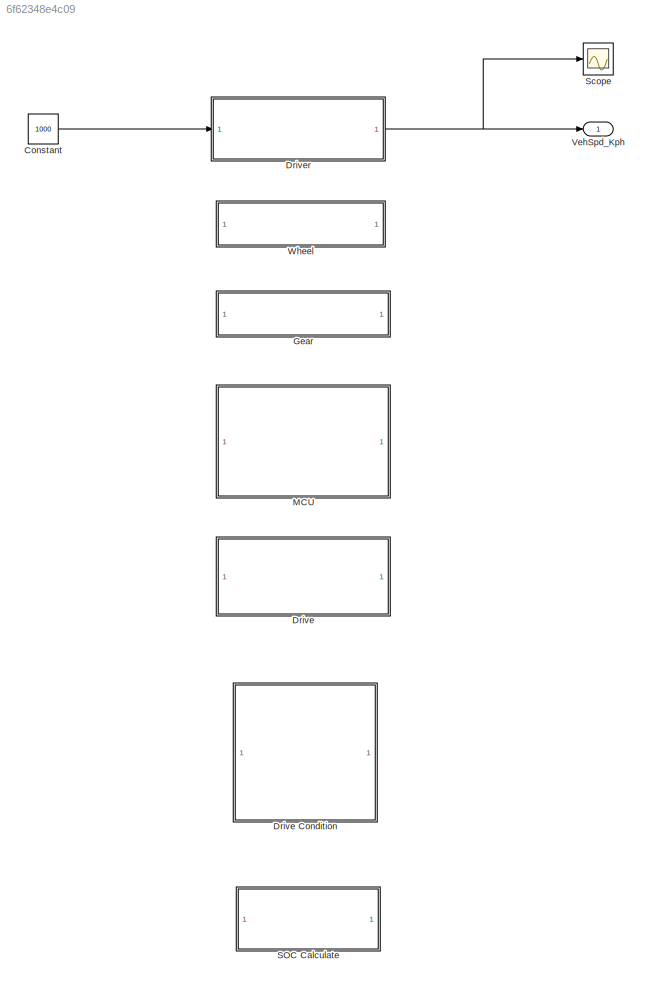
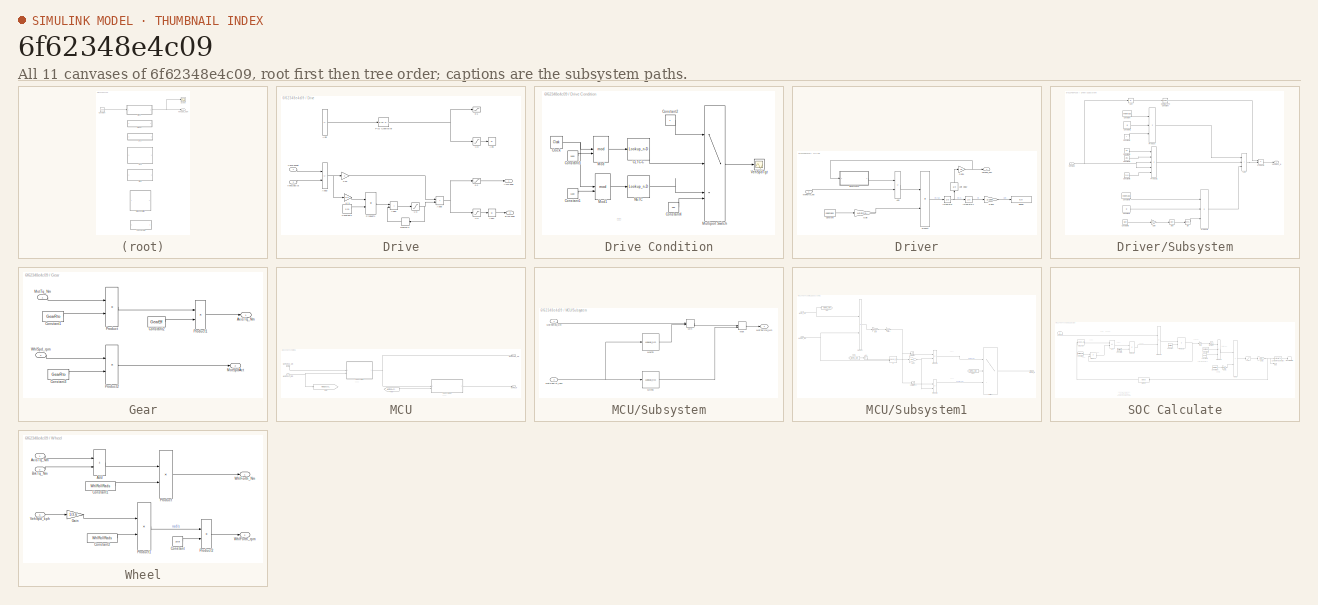
[diagram: thumbnail index - all 11 canvases of the model, root first then tree order]
MODEL slx_6f62348e4c09
KIND model
CONFIG AbsTol = auto
CONFIG EnableMultiTasking = off
CONFIG FixedStep = 0.01
CONFIG MaxStep = auto
CONFIG MinStep = auto
CONFIG RelTol = 1e-3
CONFIG SampleTimeConstraint = Unconstrained
CONFIG SolverName = FixedStepAuto
CONFIG StartTime = 0.0
CONFIG StopTime = 100
WORKSPACE source: mxarray member
WORKSPACE CLTC = [0 1 2 3 4 5 6 7 8 9 10 11 ... (3602 elements, 1801x2)]
WORKSPACE NETC = [0 1 2 3 4 5 6 7 8 9 10 11 ... (2362 elements, 1181x2)]
BLOCK [Constant] Constant
  Value = 1000
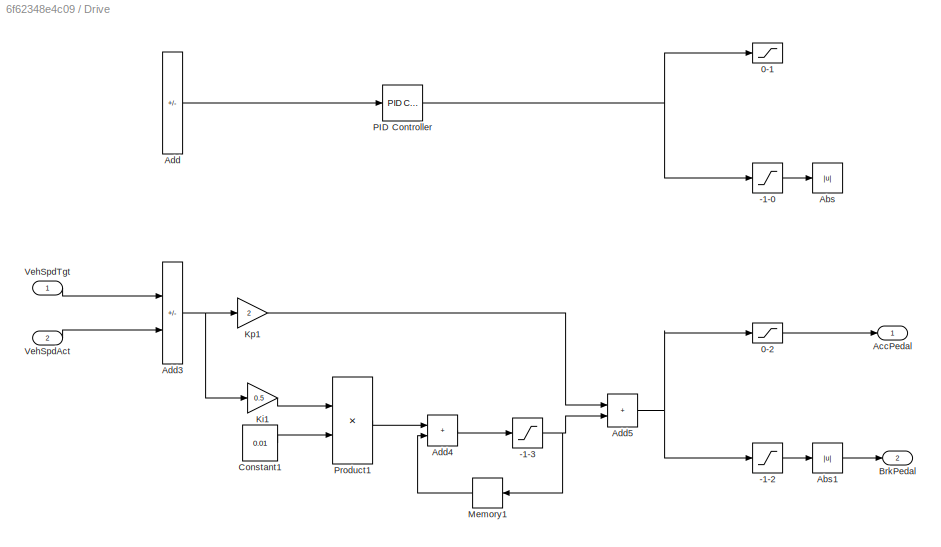
BLOCK [SubSystem] Drive
BLOCK [SubSystem] Drive Condition
BLOCK [Lookup_n-D] Drive Condition/CLTC-C
  BreakpointsForDimension1 = CLTC(:,1)
  InputPortMap = u0
  InternalRulePriority = Speed
  NumberOfTableDimensions = 1
  RndMeth = Simplest
  Table = CLTC(:,2)
BLOCK [Clock] Drive Condition/Clock
  DisplayTime = on
BLOCK [Constant] Drive Condition/Constant1
  Value = 1180
BLOCK [Constant] Drive Condition/Constant2
BLOCK [Constant] Drive Condition/Constant3
  Value = 1800
BLOCK [Constant] Drive Condition/Constant4
  Value = 255
BLOCK [Math] Drive Condition/Mod
  Operator = mod
BLOCK [Math] Drive Condition/Mod1
  Operator = mod
BLOCK [MultiPortSwitch] Drive Condition/Multiport Switch
  InputSameDT = off
  SaturateOnIntegerOverflow = off
BLOCK [Lookup_n-D] Drive Condition/NETC
  BreakpointsForDimension1 = NETC(:,1)
  InputPortMap = u0
  InternalRulePriority = Speed
  NumberOfTableDimensions = 1
  RndMeth = Simplest
  Table = NETC(:,2)
BLOCK [Scope] Drive Condition/VehSpdTgt
  Floating = off
  NumInputPorts = 1
  ScopeSpecificationString = Simulink.scopes.TimeScopeBlockCfg('CurrentConfiguration', extmgr.ConfigurationSet(extmgr.Configuration('Core','General UI',true),extmgr.Configuration('Core','Source UI',true),extmgr.Configuration('Sources','WiredSimulink',true,'DataLoggingVariableName','ScopeData1'),extmgr.Configuration('Visuals','Time Domain',true,'SerializedDisplays',{struct('MinYLimReal','-15.00000','MaxYLimReal','135.00000','Y...<+1453ch>
BLOCK [Saturate] Drive/-1-0
  Commented = on
  LowerLimit = -1
  UpperLimit = 0
BLOCK [Saturate] Drive/-1-2
  LowerLimit = -1
  UpperLimit = 0
BLOCK [Saturate] Drive/-1-3
  LowerLimit = -1
  UpperLimit = 1
BLOCK [Saturate] Drive/0-1
  Commented = on
  LowerLimit = 0
  UpperLimit = 1
BLOCK [Saturate] Drive/0-2
  LowerLimit = 0
  UpperLimit = 1
BLOCK [Abs] Drive/Abs
  Commented = on
  SaturateOnIntegerOverflow = off
BLOCK [Abs] Drive/Abs1
  SaturateOnIntegerOverflow = off
BLOCK [Outport] Drive/AccPedal
BLOCK [Sum] Drive/Add
  Commented = on
  IconShape = rectangular
  Inputs = +-
BLOCK [Sum] Drive/Add3
  IconShape = rectangular
  Inputs = +-
BLOCK [Sum] Drive/Add4
  IconShape = rectangular
BLOCK [Sum] Drive/Add5
  IconShape = rectangular
BLOCK [Outport] Drive/BrkPedal
  Port = 2
BLOCK [Constant] Drive/Constant1
  Value = 0.01
BLOCK [Gain] Drive/Ki1
  Gain = 0.5
BLOCK [Gain] Drive/Kp1
  Gain = 2
BLOCK [Memory] Drive/Memory1
  NameLocation = top
BLOCK [Reference] Drive/PID Controller  REF=slpidlib/PID Controller
  Commented = on
  LibrarySourceBlock = simulink/Continuous/PID Controller
  SourceBlock = slpidlib/PID Controller
  SourceType = PID 1dof
BLOCK [Product] Drive/Product1
BLOCK [Inport] Drive/VehSpdAct
  Port = 2
BLOCK [Inport] Drive/VehSpdTgt
BLOCK [SubSystem] Driver
BLOCK [Sum] Driver/Add
  IconShape = rectangular
  Inputs = -+
BLOCK [Constant] Driver/Constant
  Value = vhemass
BLOCK [Display] Driver/Display
  Decimation = 1
BLOCK [Gain] Driver/Gain
  Gain = 1+RotCoeff
BLOCK [Gain] Driver/Gain1
  Gain = 3.6
BLOCK [Gain] Driver/Gain2
  Gain = 1/1000
BLOCK [Integrator] Driver/Integrator
BLOCK [Integrator] Driver/Integrator1
BLOCK [Product] Driver/Product
  Inputs = */
BLOCK [SubSystem] Driver/Subsystem
BLOCK [Abs] Driver/Subsystem/Abs
  SaturateOnIntegerOverflow = off
BLOCK [Sum] Driver/Subsystem/Add
  IconShape = rectangular
  Inputs = +++
BLOCK [Trigonometry] Driver/Subsystem/Atan
  Operator = atan
BLOCK [Reference] Driver/Subsystem/Compare To Constant  REF=simulink/Logic and Bit
Operations/Compare
To Constant
  SourceBlock = simulink/Logic and Bit\nOperations/Compare\nTo Constant
  SourceType = Compare To Constant
BLOCK [Constant] Driver/Subsystem/Constant
  Value = vhemass
BLOCK [Constant] Driver/Subsystem/Constant1
  Value = g
BLOCK [Constant] Driver/Subsystem/Constant2
  Value = f
BLOCK [Constant] Driver/Subsystem/Constant3
  Value = Cd
BLOCK [Constant] Driver/Subsystem/Constant4
  Value = Area
BLOCK [Constant] Driver/Subsystem/Constant5
  Value = 21.15
BLOCK [Constant] Driver/Subsystem/Constant6
  Value = vhemass
BLOCK [Constant] Driver/Subsystem/Constant7
  Value = g
BLOCK [Constant] Driver/Subsystem/Constant8
  Value = Grad
BLOCK [Gain] Driver/Subsystem/Gain
  Gain = 0.01
BLOCK [Product] Driver/Subsystem/Product
  Inputs = 3
BLOCK [Product] Driver/Subsystem/Product1
  Inputs = ****/
BLOCK [Product] Driver/Subsystem/Product2
  Inputs = 3
BLOCK [Product] Driver/Subsystem/Product3
BLOCK [Trigonometry] Driver/Subsystem/Sin
BLOCK [Outport] Driver/Subsystem/VehRess_N
BLOCK [Inport] Driver/Subsystem/VehSpd
BLOCK [UnitDelay] Driver/Unit Delay
  HasFrameUpgradeWarning = on
  NameLocation = right
  SampleTime = -1
BLOCK [Outport] Driver/VehSpd_Kph
BLOCK [Inport] Driver/WhlForth_Nm
BLOCK [SubSystem] Gear
BLOCK [Outport] Gear/AxisTq_Nm
BLOCK [Constant] Gear/Constant1
  Value = GearRto
BLOCK [Constant] Gear/Constant2
  Value = GearEff
BLOCK [Constant] Gear/Constant3
  Value = GearRto
BLOCK [Outport] Gear/MotSpdAct
  Port = 2
BLOCK [Inport] Gear/MotTq_Nm
BLOCK [Product] Gear/Product
BLOCK [Product] Gear/Product1
BLOCK [Product] Gear/Product2
BLOCK [Inport] Gear/WhlSpd_rpm
  Port = 2
BLOCK [SubSystem] MCU
BLOCK [From] MCU/From
  GotoTag = MotSpdAct_rpm
BLOCK [Goto] MCU/Goto
  GotoTag = MotSpdAct_rpm
BLOCK [Outport] MCU/MotPwr_w
  Port = 2
BLOCK [Inport] MCU/MotSpdAct_rpm
  Port = 2
BLOCK [Outport] MCU/MotTqCmd_Nm
BLOCK [Inport] MCU/MotTqReq_Nm
BLOCK [SubSystem] MCU/Subsystem
BLOCK [MinMax] MCU/Subsystem/Max
  Function = max
  Inputs = 2
BLOCK [Lookup_n-D] MCU/Subsystem/MaxTq
  BreakpointsForDimension1 = MotDrvCrv_1X_rpm
  ExtrapMethod = Clip
  InputPortMap = u0
  InternalRulePriority = Speed
  NumberOfTableDimensions = 1
  RndMeth = Simplest
  Table = MotDrvCrv_1Y_Tq
  UseLastTableValue = on
BLOCK [MinMax] MCU/Subsystem/Min
  Inputs = 2
BLOCK [Lookup_n-D] MCU/Subsystem/MinTq
  BreakpointsForDimension1 = MotGenCrv_1X_rpm
  ExtrapMethod = Clip
  InputPortMap = u0
  InternalRulePriority = Speed
  NumberOfTableDimensions = 1
  RndMeth = Simplest
  Table = MotGenCrv_1Y_Tq
  UseLastTableValue = on
BLOCK [Inport] MCU/Subsystem/MotSpdAct_rpm
  Port = 2
BLOCK [Outport] MCU/Subsystem/MotTqCmd_Nm
BLOCK [Inport] MCU/Subsystem/MotTqReq_Nm
BLOCK [SubSystem] MCU/Subsystem1
BLOCK [Abs] MCU/Subsystem1/Abs
  SaturateOnIntegerOverflow = off
BLOCK [From] MCU/Subsystem1/From
  GotoTag = MotTq_Nm
BLOCK [From] MCU/Subsystem1/From1
  GotoTag = MotTq_Nm
BLOCK [Gain] MCU/Subsystem1/Gain
  Gain = 1/9550
BLOCK [Gain] MCU/Subsystem1/Gain1
  Gain = 1000
BLOCK [Gain] MCU/Subsystem1/Gain2
  Gain = 0.01
BLOCK [Goto] MCU/Subsystem1/Goto
  GotoTag = MotTq_Nm
BLOCK [Outport] MCU/Subsystem1/MotPwr_w
BLOCK [Inport] MCU/Subsystem1/MotSpd_rpm
  Port = 2
BLOCK [Inport] MCU/Subsystem1/MotTq_Nm
BLOCK [Product] MCU/Subsystem1/Product
BLOCK [Product] MCU/Subsystem1/Product1
BLOCK [Product] MCU/Subsystem1/Product2
BLOCK [Saturate] MCU/Subsystem1/Saturation
  LowerLimit = 0
  UpperLimit = inf
BLOCK [Saturate] MCU/Subsystem1/Saturation1
  LowerLimit = -inf
  UpperLimit = 0
BLOCK [Switch] MCU/Subsystem1/Switch
  Criteria = u2 > Threshold
  InputSameDT = off
  SaturateOnIntegerOverflow = off
BLOCK [Lookup_n-D] MCU/Subsystem1/e
  BreakpointsForDimension1 = MotEffMap_2X_rpm
  BreakpointsForDimension2 = MotEffMap_2Y_Nm
  ExtrapMethod = Clip
  InputPortMap = u0,u1
  InternalRulePriority = Speed
  RndMeth = Simplest
  Table = MotEffMap_2Z_pct
  UseLastTableValue = on
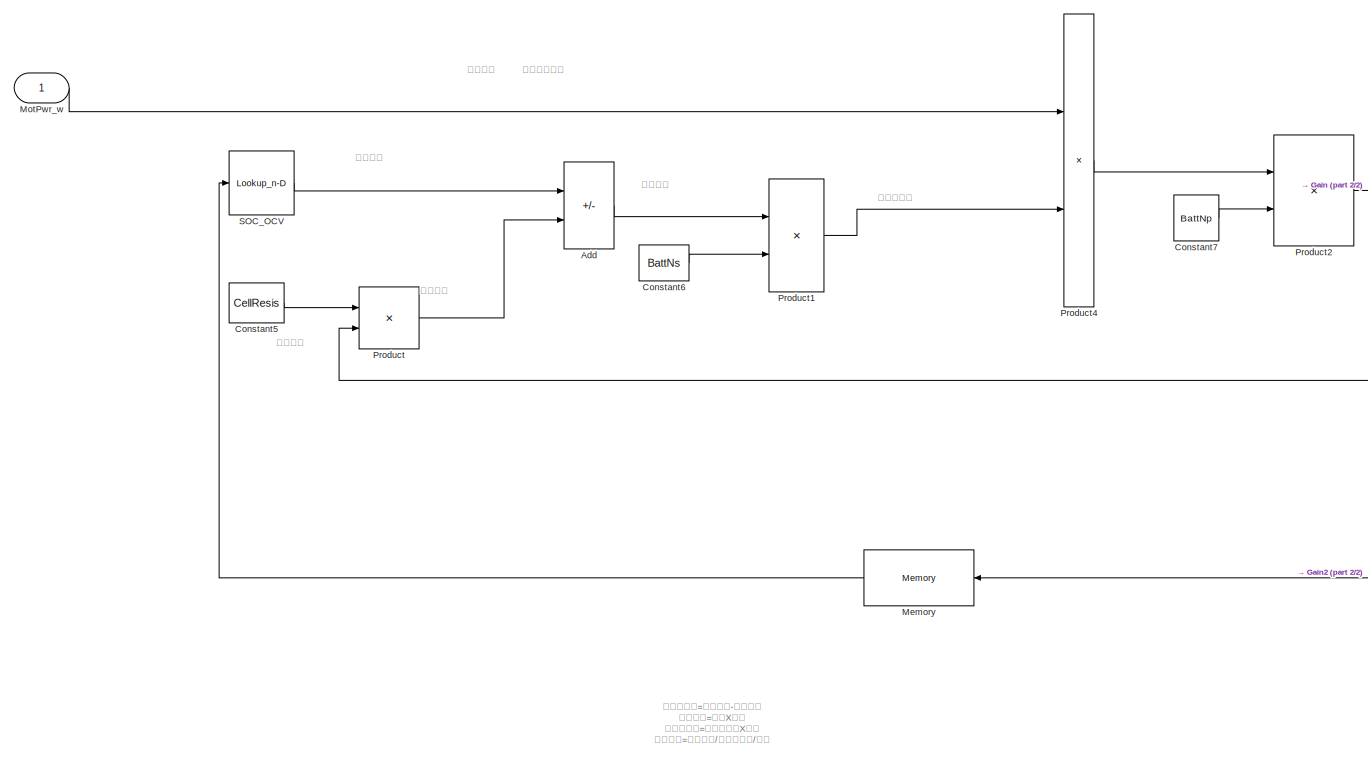
[diagram: SOC Calculate - part 1/2, left side, full height]
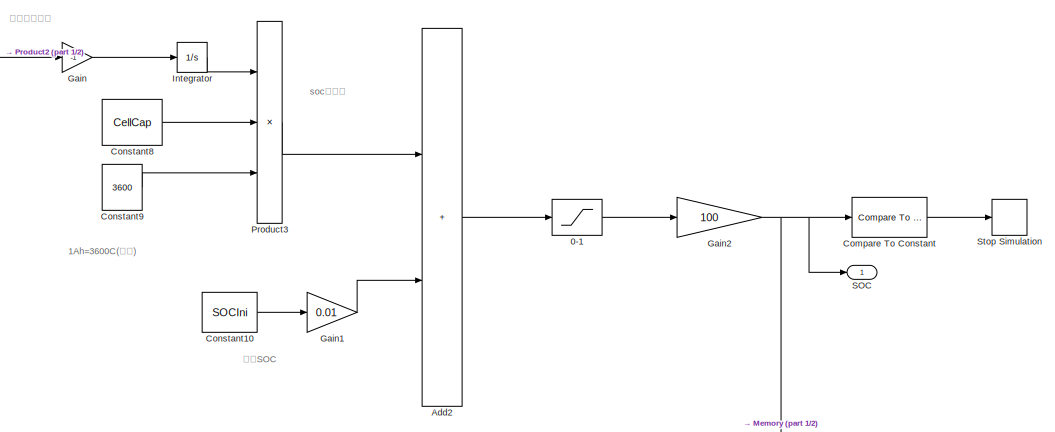
[diagram: SOC Calculate - part 2/2, middle right region]
BLOCK [SubSystem] SOC Calculate
BLOCK [Saturate] SOC Calculate/0-1
  LowerLimit = 0
  UpperLimit = 1
BLOCK [Sum] SOC Calculate/Add
  IconShape = rectangular
  Inputs = +-
BLOCK [Sum] SOC Calculate/Add2
  IconShape = rectangular
BLOCK [Reference] SOC Calculate/Compare To Constant  REF=simulink/Logic and Bit
Operations/Compare
To Constant
  SourceBlock = simulink/Logic and Bit\nOperations/Compare\nTo Constant
  SourceType = Compare To Constant
BLOCK [Constant] SOC Calculate/Constant10
  Value = SOCIni
BLOCK [Constant] SOC Calculate/Constant5
  Value = CellResis
BLOCK [Constant] SOC Calculate/Constant6
  Value = BattNs
BLOCK [Constant] SOC Calculate/Constant7
  Value = BattNp
BLOCK [Constant] SOC Calculate/Constant8
  Value = CellCap
BLOCK [Constant] SOC Calculate/Constant9
  Value = 3600
BLOCK [Gain] SOC Calculate/Gain
  Gain = -1
BLOCK [Gain] SOC Calculate/Gain1
  Gain = 0.01
BLOCK [Gain] SOC Calculate/Gain2
  Gain = 100
BLOCK [Integrator] SOC Calculate/Integrator
BLOCK [Memory] SOC Calculate/Memory
  NameLocation = top
BLOCK [Inport] SOC Calculate/MotPwr_w
BLOCK [Product] SOC Calculate/Product
BLOCK [Product] SOC Calculate/Product1
BLOCK [Product] SOC Calculate/Product2
  Inputs = */
BLOCK [Product] SOC Calculate/Product3
  Inputs = *//
BLOCK [Product] SOC Calculate/Product4
BLOCK [Outport] SOC Calculate/SOC
BLOCK [Lookup_n-D] SOC Calculate/SOC_OCV
  BreakpointsForDimension1 = OCV_1X_pct
  InputPortMap = u0
  InternalRulePriority = Speed
  NumberOfTableDimensions = 1
  RndMeth = Simplest
  Table = OCV_1Y_v
BLOCK [Stop] SOC Calculate/Stop Simulation
BLOCK [Scope] Scope
  Floating = off
  NumInputPorts = 1
  ScopeSpecificationString = Simulink.scopes.TimeScopeBlockCfg('CurrentConfiguration', extmgr.ConfigurationSet(extmgr.Configuration('Core','General UI',true),extmgr.Configuration('Core','Source UI',true),extmgr.Configuration('Sources','WiredSimulink',true),extmgr.Configuration('Visuals','Time Domain',true,'SerializedDisplays',{struct('MinYLimReal','-17.2121','MaxYLimReal','154.90889','YLabelReal','','MinYLimMag','0.00000','Ma...<+1406ch>
BLOCK [Outport] VehSpd_Kph
BLOCK [SubSystem] Wheel
BLOCK [Sum] Wheel/Add
  IconShape = rectangular
BLOCK [Inport] Wheel/AxisTq_Nm
BLOCK [Inport] Wheel/BrkTq_Nm
  Port = 2
BLOCK [Constant] Wheel/Constant
  Value = 30/pi
BLOCK [Constant] Wheel/Constant1
  Value = WhlRollRads
BLOCK [Constant] Wheel/Constant2
  Value = WhlRollRads
BLOCK [Gain] Wheel/Gain
  Gain = 1/3.6
BLOCK [Product] Wheel/Product
  Inputs = */
BLOCK [Product] Wheel/Product1
  Inputs = */
BLOCK [Product] Wheel/Product2
BLOCK [Inport] Wheel/VehSpd_kph
  Port = 3
BLOCK [Outport] Wheel/WhlForth_Nm
BLOCK [Outport] Wheel/WhlForth_rpm
  Port = 2
ANNOTATION Drive Condition: 工况
ANNOTATION MCU: 功率计算
ANNOTATION MCU: 扭矩计算
ANNOTATION MCU/Subsystem1: 发电功率
ANNOTATION MCU/Subsystem1: 驱动功率
ANNOTATION SOC Calculate: 1Ah=3600C(库伦)
ANNOTATION SOC Calculate: 单体端电压=开路电压-内阻压降 内阻压降=内阻X电流 系统端电压=单体端电压X串数 单体电流=负载功率/系统端电压/并数
ANNOTATION SOC Calculate: soc变化量
ANNOTATION SOC Calculate: 内阻压降
ANNOTATION SOC Calculate: 初始SOC
ANNOTATION SOC Calculate: 单体电压
ANNOTATION SOC Calculate: 单体电流
ANNOTATION SOC Calculate: 开路电压
ANNOTATION SOC Calculate: 系统端电压
ANNOTATION SOC Calculate: 负载功率
ANNOTATION SOC Calculate: 驱动时是正的
ANNOTATION SOC Calculate: 驱动时是耗电
LINE Constant:1 -> Driver:1
LINE Drive Condition/CLTC-C:1 -> Drive Condition/Multiport Switch:2
NET Drive Condition/Clock:1 -> Drive Condition/Mod1:1, Drive Condition/Mod:1
LINE Drive Condition/Constant1:1 -> Drive Condition/Mod1:2
LINE Drive Condition/Constant2:1 -> Drive Condition/Multiport Switch:1
LINE Drive Condition/Constant3:1 -> Drive Condition/Mod:2
LINE Drive Condition/Constant4:1 -> Drive Condition/Multiport Switch:4
LINE Drive Condition/Mod1:1 -> Drive Condition/NETC:1
LINE Drive Condition/Mod:1 -> Drive Condition/CLTC-C:1
LINE Drive Condition/Multiport Switch:1 -> Drive Condition/VehSpdTgt:1
LINE Drive Condition/NETC:1 -> Drive Condition/Multiport Switch:3
LINE Drive/-1-0:1 -> Drive/Abs:1
LINE Drive/-1-2:1 -> Drive/Abs1:1
NET Drive/-1-3:1 -> Drive/Add5:2, Drive/Memory1:1
LINE Drive/0-2:1 -> Drive/AccPedal:1
LINE Drive/Abs1:1 -> Drive/BrkPedal:1
NET Drive/Add3:1 -> Drive/Ki1:1, Drive/Kp1:1
LINE Drive/Add4:1 -> Drive/-1-3:1
NET Drive/Add5:1 -> Drive/-1-2:1, Drive/0-2:1
LINE Drive/Add:1 -> Drive/PID Controller:1
LINE Drive/Constant1:1 -> Drive/Product1:2
LINE Drive/Ki1:1 -> Drive/Product1:1
LINE Drive/Kp1:1 -> Drive/Add5:1
LINE Drive/Memory1:1 -> Drive/Add4:2
NET Drive/PID Controller:1 -> Drive/-1-0:1, Drive/0-1:1
LINE Drive/Product1:1 -> Drive/Add4:1
LINE Drive/VehSpdAct:1 -> Drive/Add3:2
LINE Drive/VehSpdTgt:1 -> Drive/Add3:1
LINE Driver/Add:1 -> Driver/Product:1
LINE Driver/Constant:1 -> Driver/Gain:1
NET Driver/Gain1:1 -> Driver/Subsystem:1, Driver/VehSpd_Kph:1
LINE Driver/Gain2:1 -> Driver/Display:1
LINE Driver/Gain:1 -> Driver/Product:2
LINE Driver/Integrator1:1 -> Driver/Gain2:1
NET Driver/Integrator:1 -> Driver/Integrator1:1, Driver/Unit Delay:1
LINE Driver/Product:1 -> Driver/Integrator:1
LINE Driver/Subsystem/Abs:1 -> Driver/Subsystem/Compare To Constant:1
LINE Driver/Subsystem/Add:1 -> Driver/Subsystem/Product3:2
LINE Driver/Subsystem/Atan:1 -> Driver/Subsystem/Sin:1
LINE Driver/Subsystem/Compare To Constant:1 -> Driver/Subsystem/Product3:1
LINE Driver/Subsystem/Constant1:1 -> Driver/Subsystem/Product:2
LINE Driver/Subsystem/Constant2:1 -> Driver/Subsystem/Product:3
LINE Driver/Subsystem/Constant3:1 -> Driver/Subsystem/Product1:1
LINE Driver/Subsystem/Constant4:1 -> Driver/Subsystem/Product1:2
LINE Driver/Subsystem/Constant5:1 -> Driver/Subsystem/Product1:5
LINE Driver/Subsystem/Constant6:1 -> Driver/Subsystem/Product2:1
LINE Driver/Subsystem/Constant7:1 -> Driver/Subsystem/Product2:2
LINE Driver/Subsystem/Constant8:1 -> Driver/Subsystem/Gain:1
LINE Driver/Subsystem/Constant:1 -> Driver/Subsystem/Product:1
LINE Driver/Subsystem/Gain:1 -> Driver/Subsystem/Atan:1
LINE Driver/Subsystem/Product1:1 -> Driver/Subsystem/Add:2
LINE Driver/Subsystem/Product2:1 -> Driver/Subsystem/Add:3
LINE Driver/Subsystem/Product3:1 -> Driver/Subsystem/VehRess_N:1
LINE Driver/Subsystem/Product:1 -> Driver/Subsystem/Add:1
LINE Driver/Subsystem/Sin:1 -> Driver/Subsystem/Product2:3
NET Driver/Subsystem/VehSpd:1 -> Driver/Subsystem/Abs:1, Driver/Subsystem/Product1:3, Driver/Subsystem/Product1:4
LINE Driver/Subsystem:1 -> Driver/Add:1
LINE Driver/Unit Delay:1 -> Driver/Gain1:1
LINE Driver/WhlForth_Nm:1 -> Driver/Add:2
NET Driver:1 -> Scope:1, VehSpd_Kph:1
LINE Gear/Constant1:1 -> Gear/Product:2
LINE Gear/Constant2:1 -> Gear/Product1:2
LINE Gear/Constant3:1 -> Gear/Product2:2
LINE Gear/MotTq_Nm:1 -> Gear/Product:1
LINE Gear/Product1:1 -> Gear/AxisTq_Nm:1
LINE Gear/Product2:1 -> Gear/MotSpdAct:1
LINE Gear/Product:1 -> Gear/Product1:1
LINE Gear/WhlSpd_rpm:1 -> Gear/Product2:1
LINE MCU/From:1 -> MCU/Subsystem1:2
NET MCU/MotSpdAct_rpm:1 -> MCU/Goto:1, MCU/Subsystem:2
LINE MCU/MotTqReq_Nm:1 -> MCU/Subsystem:1
LINE MCU/Subsystem/Max:1 -> MCU/Subsystem/MotTqCmd_Nm:1
LINE MCU/Subsystem/MaxTq:1 -> MCU/Subsystem/Min:2
LINE MCU/Subsystem/Min:1 -> MCU/Subsystem/Max:1
LINE MCU/Subsystem/MinTq:1 -> MCU/Subsystem/Max:2
NET MCU/Subsystem/MotSpdAct_rpm:1 -> MCU/Subsystem/MaxTq:1, MCU/Subsystem/MinTq:1
LINE MCU/Subsystem/MotTqReq_Nm:1 -> MCU/Subsystem/Min:1
LINE MCU/Subsystem1/Abs:1 -> MCU/Subsystem1/e:1
LINE MCU/Subsystem1/From1:1 -> MCU/Subsystem1/Abs:1
LINE MCU/Subsystem1/From:1 -> MCU/Subsystem1/Switch:2
NET MCU/Subsystem1/Gain1:1 -> MCU/Subsystem1/Saturation1:1, MCU/Subsystem1/Saturation:1
NET MCU/Subsystem1/Gain2:1 -> MCU/Subsystem1/Product1:2, MCU/Subsystem1/Product2:2
LINE MCU/Subsystem1/Gain:1 -> MCU/Subsystem1/Gain1:1
NET MCU/Subsystem1/MotSpd_rpm:1 -> MCU/Subsystem1/Product:2, MCU/Subsystem1/e:2
NET MCU/Subsystem1/MotTq_Nm:1 -> MCU/Subsystem1/Goto:1, MCU/Subsystem1/Product:1
LINE MCU/Subsystem1/Product1:1 -> MCU/Subsystem1/Switch:1
LINE MCU/Subsystem1/Product2:1 -> MCU/Subsystem1/Switch:3
LINE MCU/Subsystem1/Product:1 -> MCU/Subsystem1/Gain:1
LINE MCU/Subsystem1/Saturation1:1 -> MCU/Subsystem1/Product2:1
LINE MCU/Subsystem1/Saturation:1 -> MCU/Subsystem1/Product1:1
LINE MCU/Subsystem1/Switch:1 -> MCU/Subsystem1/MotPwr_w:1
LINE MCU/Subsystem1/e:1 -> MCU/Subsystem1/Gain2:1
LINE MCU/Subsystem1:1 -> MCU/MotPwr_w:1
NET MCU/Subsystem:1 -> MCU/MotTqCmd_Nm:1, MCU/Subsystem1:1
LINE SOC Calculate/0-1:1 -> SOC Calculate/Gain2:1
LINE SOC Calculate/Add2:1 -> SOC Calculate/0-1:1
LINE SOC Calculate/Add:1 -> SOC Calculate/Product1:1
LINE SOC Calculate/Compare To Constant:1 -> SOC Calculate/Stop Simulation:1
LINE SOC Calculate/Constant10:1 -> SOC Calculate/Gain1:1
LINE SOC Calculate/Constant5:1 -> SOC Calculate/Product:1
LINE SOC Calculate/Constant6:1 -> SOC Calculate/Product1:2
LINE SOC Calculate/Constant7:1 -> SOC Calculate/Product2:2
LINE SOC Calculate/Constant8:1 -> SOC Calculate/Product3:2
LINE SOC Calculate/Constant9:1 -> SOC Calculate/Product3:3
LINE SOC Calculate/Gain1:1 -> SOC Calculate/Add2:2
NET SOC Calculate/Gain2:1 -> SOC Calculate/Compare To Constant:1, SOC Calculate/Memory:1, SOC Calculate/SOC:1
LINE SOC Calculate/Gain:1 -> SOC Calculate/Integrator:1
LINE SOC Calculate/Integrator:1 -> SOC Calculate/Product3:1
LINE SOC Calculate/Memory:1 -> SOC Calculate/SOC_OCV:1
LINE SOC Calculate/MotPwr_w:1 -> SOC Calculate/Product4:1
LINE SOC Calculate/Product1:1 -> SOC Calculate/Product4:2
NET SOC Calculate/Product2:1 -> SOC Calculate/Gain:1, SOC Calculate/Product:2
LINE SOC Calculate/Product3:1 -> SOC Calculate/Add2:1
LINE SOC Calculate/Product4:1 -> SOC Calculate/Product2:1
LINE SOC Calculate/Product:1 -> SOC Calculate/Add:2
LINE SOC Calculate/SOC_OCV:1 -> SOC Calculate/Add:1
LINE Wheel/Add:1 -> Wheel/Product:1
LINE Wheel/AxisTq_Nm:1 -> Wheel/Add:1
LINE Wheel/BrkTq_Nm:1 -> Wheel/Add:2
LINE Wheel/Constant1:1 -> Wheel/Product:2
LINE Wheel/Constant2:1 -> Wheel/Product1:2
LINE Wheel/Constant:1 -> Wheel/Product2:2
LINE Wheel/Gain:1 -> Wheel/Product1:1
LINE Wheel/Product1:1 -> Wheel/Product2:1
LINE Wheel/Product2:1 -> Wheel/WhlForth_rpm:1
LINE Wheel/Product:1 -> Wheel/WhlForth_Nm:1
LINE Wheel/VehSpd_kph:1 -> Wheel/Gain:1
note: NET lines group one-source signal fan-out (src -> all destinations, sorted); 1:1 wires keep LINE
